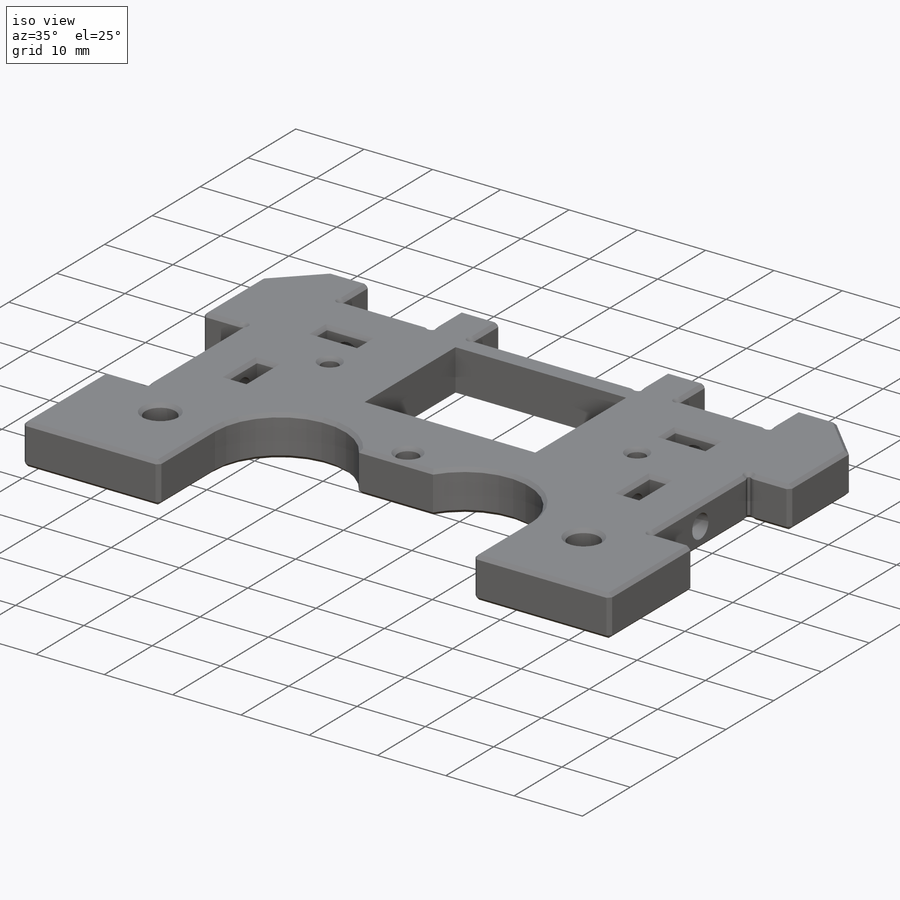
[diagram: iso view]
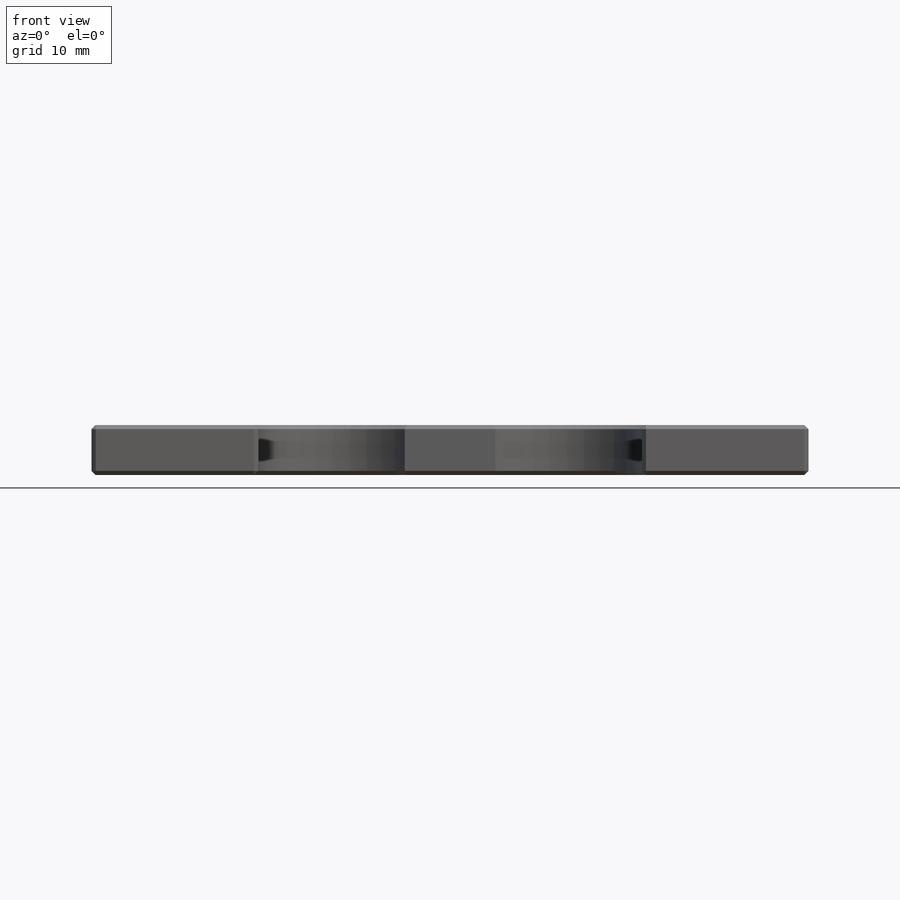
[diagram: front view]
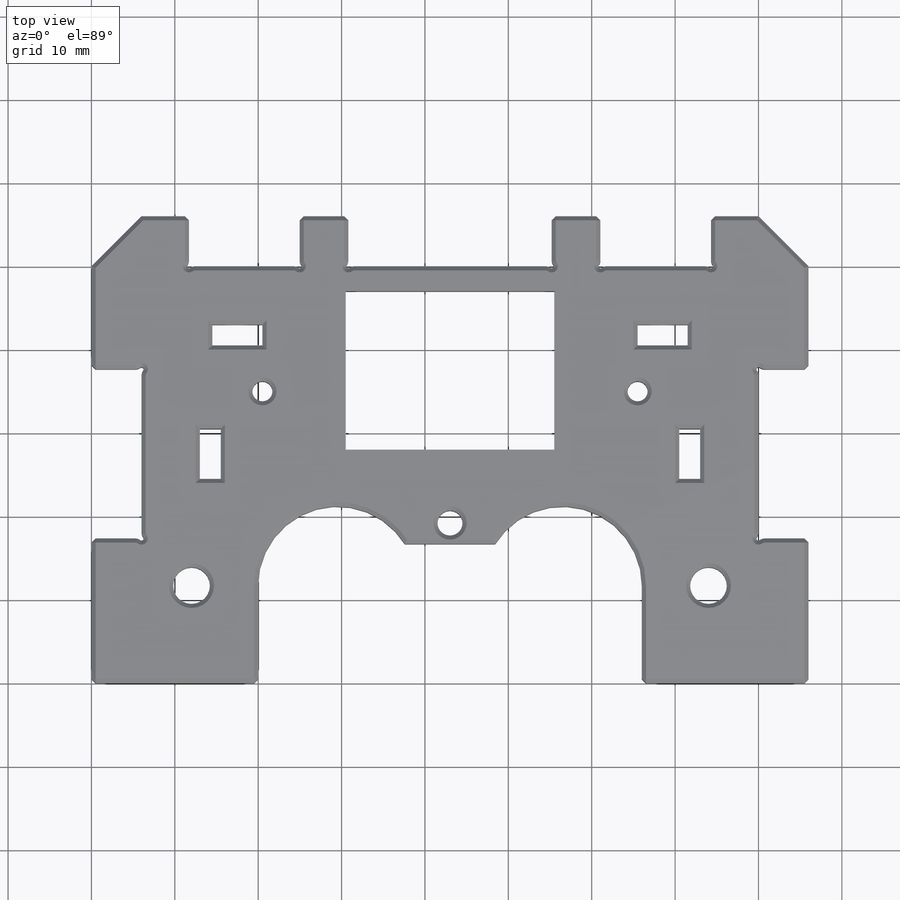
[diagram: top view]
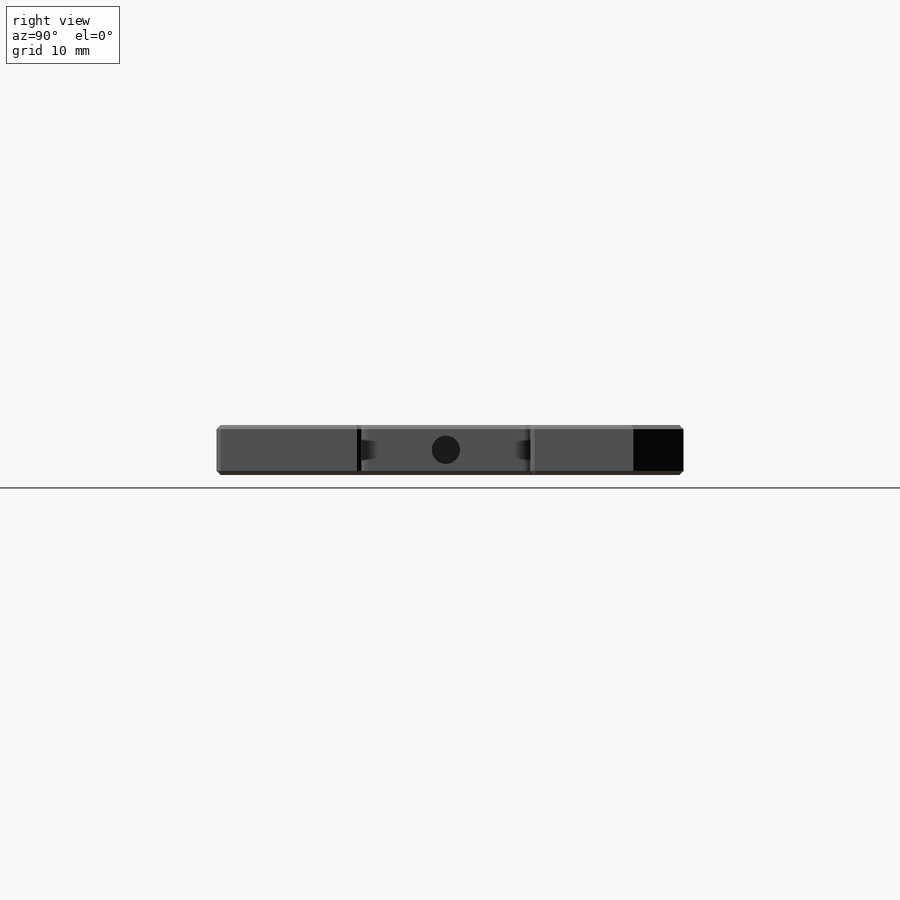
[diagram: right view]
SOLIDWORKS PART (.sldprt)
format: sldprt  version: not decoded by parser v0  size: 1,812,480 bytes
history: native  units: mm
features: sketch x13, fillet x6, plane x6, hole x3, chamfer x3, cut_extrude x2, material x1, extrude x1 (+12 scaffold rows collapsed)
feature tree (47):
  scaffold x12  (default folders/planes/origin — collapsed)
  material  "Material <not specified>"
  sketch  "Sketch1"  dims[c1.D3=18.0mm c1.D5=4.4mm c2.D3=19.0mm c2.D12=2.4mm c2.D15=3.0mm c2.D1=~63.395222mm c2.D2=~91.517914mm c3.D1=86.0mm c3.D2=50.0mm c3.D4=35.3mm c3.D5=~76.906014mm c3.D6=62.0mm c3.D7=~24.300825mm c3.D8=~6.911509mm c4.D7=6.0mm c4.D8=12.5mm c4.D9=20.3mm c4.D10=22.5mm c5.D8=20.3mm c5.D4=27.0mm c6.D8=38.3mm c6.D11=5.0mm c6.D12=~43.574842mm c6.D13=45.0mm c6.D14=15.0mm c6.D15=11.7mm c6.D16=7.5mm c6.D17=6.0mm c6.D18=6.0mm c6.D19=5.7mm c6.D20=5.85mm c6.D21=6.0mm c6.D22=12.81mm c6.D23=6.0mm c6.D24=~8.485281mm c7.D18=24.96mm c7.D22=6.0mm]
  extrude  "Base Plate"  Depth=6mm
  sketch  "Sketch25"  dims[D1=0.5mm]
  cut_extrude  "Square Corner Reliefs"  [1 undecoded]
  fillet  "Fillet1"  Radius=1mm
  fillet  "Axis2"  [1 undecoded]
  plane  "Plane1"
  plane  "Plane2"
  plane  "Plane5"  Offset=12.75mm
  fillet  "Axis3"  [1 undecoded]
  fillet  "Axis4"  [1 undecoded]
  sketch  "Sketch10"  dims[c1.D3=2.0mm c1.D1=~18.575027mm c1.D2=~20.565928mm c2.D1=25.5mm c2.D2=25.5mm c3.D1=3.0mm]
  sketch  "TopHole"  dims[c1.D3=23.0mm c1.D5=23.0mm c1.D1=20.066mm c1.D2=~20.066013mm c2.D1=20.066mm c2.D2=20.066mm c2.D4=18.0mm]
  sketch  "BottomHole"  dims[D1=23.0mm]
  hole  "Fan Screw Holes"  Diameter=3.6mm Depth=6mm
  sketch  "Sketch15"
  sketch  "Sketch14"  dims[hole-wizard template sketch: 54 standard entries collapsed; hole parameters kept: c17.Thru Hole Dia.=3.6mm c17.Thru Hole Depth=6.0mm c17.Near C'Sink Dia.=6.3mm c17.D4=~3.666174mm c17.Near C'Sink Angle=90.0deg]
  sketch  "Sketch18"  dims[c1.D1=3.4mm c1.D2=3.4mm c2.D1=3.0mm]
  cut_extrude  "ShelfToBackPlate Screw Holes"  Depth=12mm
  sketch  "Sketch19"  dims[c1.D1=3.4mm c2.D1=12.0mm]
  sketch  "Sketch20"  dims[c1.D1=~2.536379mm c1.D2=~2.611447mm c2.D1=12.0mm]
  fillet  "Axis5"  [1 undecoded]
  fillet  "Axis6"  [1 undecoded]
  plane  "Plane6"
  plane  "Plane7"
  plane  "Plane8"
  sketch  "Sketch21"  dims[c1.D1=5.2191mm c1.D2=~4.226764mm c2.D1=~1.669208mm c2.D2=~6.810834mm c3.D1=~1.758279mm c3.D2=~5.277909mm c4.D1=~4.211219mm c4.D2=~3.674871mm c5.D1=2.5mm c5.D2=6.0mm c5.D3=2.5mm c5.D4=6.0mm c5.D5=6.0mm c5.D6=2.5mm c5.D7=6.0mm c5.D8=2.5mm c5.D9=7.0mm c5.D10=7.0mm c5.D11=7.0mm c5.D12=7.0mm c6.D10=7.0mm c6.D11=7.0mm c6.D13=12.0mm c7.D10=7.0mm c7.D11=7.0mm c8.D10=7.0mm c8.D11=6.0mm c9.D10=7.0mm c9.D11=6.0mm]
  hole  "Air Hole"  Diameter=10mm
  sketch  "Sketch22"  dims[c1.D1=25.6mm c1.D2=~10.279731mm c2.D1=25.6mm c2.D2=~10.525056mm c3.D1=11.5mm c3.D2=11.5mm c3.D3=11.8mm c4.D1=4.6mm]
  chamfer  "Chamfer1"  Distance=0.5mm Angle=45deg
  sketch  "Sketch24"  dims[D1=25.0mm D2=19.0mm D3=3.0mm]
  hole  "e3d Hole"  [1 undecoded]
  chamfer  "Chamfer3"  Distance=0.5mm Angle=45deg
  chamfer  "Chamfer2"  Distance=0.5mm Angle=45deg
decode coverage: 20 of 28 modeling features carry decoded parameters
note: ~ marks probable driven/reference dimensions
note: 7 parameter values undecoded
summary: no parameter record found for 7 features
note: suppression state not decoded; provenance and decode notes live in map.json
